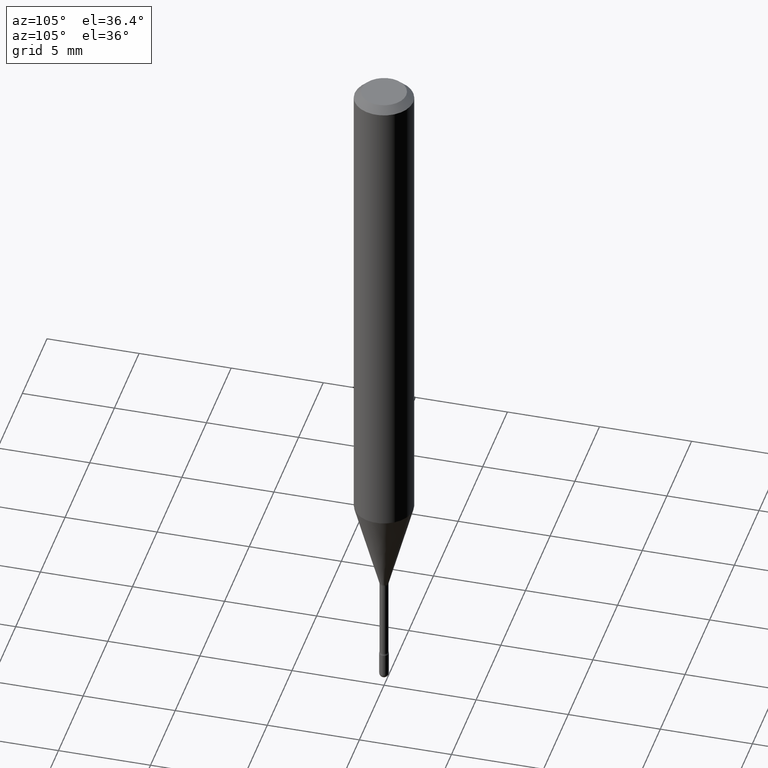
[diagram: clean part render]
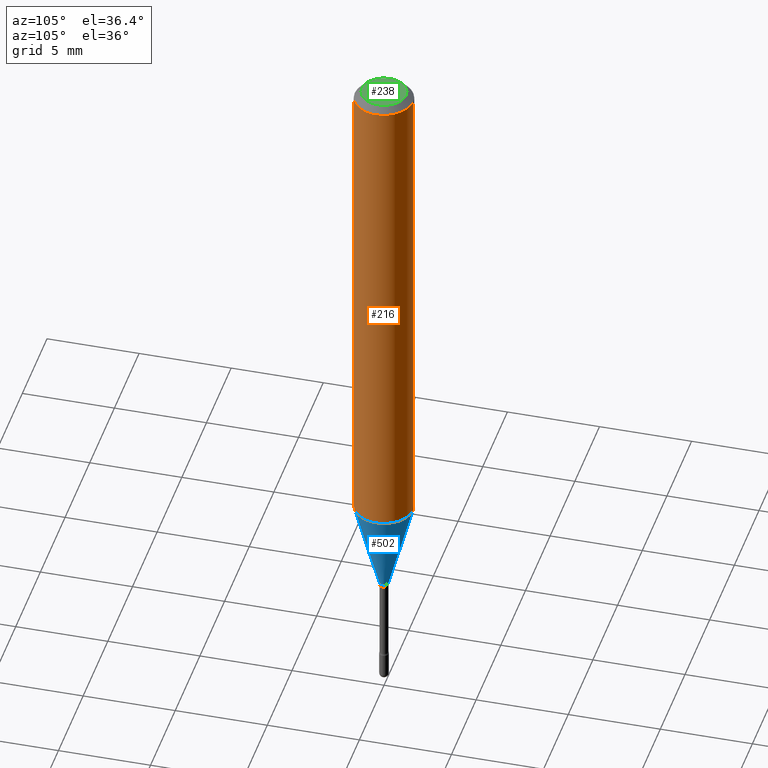
[diagram: same view with three faces highlighted in distinct colors, each labeled with its STEP entity id]
A machine part, auxiliary view with three faces highlighted in distinct colors.
Their STEP definitions:

[orange] entity #216 — the highlighted cylindrical surface (edge-blend (fillet) strip) has radius 1.5875 mm, axis along (-0, 0, 1).
#29 = CARTESIAN_POINT ( 'NONE',  ( 4.440892098500884514E-16, 0.06249999999999629463, -1.061828102118093309 ) ) ;
#33 = DIRECTION ( 'NONE',  ( -2.445584668416512625E-29, 3.491315417533346075E-15, 1.000000000000000000 ) ) ;
#84 = VERTEX_POINT ( 'NONE', #202 ) ;
#91 = VECTOR ( 'NONE', #159, 39.37007874015748143 ) ;
#94 = DIRECTION ( 'NONE',  ( -6.982962677686265922E-15, -1.000000000000000000, 3.491315417533345680E-15 ) ) ;
#123 = LINE ( 'NONE', #375, #452 ) ;
#132 = EDGE_CURVE ( 'NONE', #84, #310, #140, .T. ) ;
#140 = LINE ( 'NONE', #338, #91 ) ;
#146 = VERTEX_POINT ( 'NONE', #29 ) ;
#159 = DIRECTION ( 'NONE',  ( -2.445584668416512625E-29, 3.491315417533346075E-15, 1.000000000000000000 ) ) ;
#178 = CYLINDRICAL_SURFACE ( 'NONE', #346, 0.06250000000000000000 ) ;
#184 = EDGE_LOOP ( 'NONE', ( #263, #425, #436, #513 ) ) ;
#190 = CARTESIAN_POINT ( 'NONE',  ( 3.668377002624788976E-31, -5.236973126300048325E-17, -0.01500000000000008271 ) ) ;
#202 = CARTESIAN_POINT ( 'NONE',  ( -4.364351673553657356E-16, -0.06250000000000371925, -1.061828102118092865 ) ) ;
#216 = ADVANCED_FACE ( 'NONE', ( #531 ), #178, .T. ) ;
#257 = CIRCLE ( 'NONE', #340, 0.06250000000000000000 ) ;
#263 = ORIENTED_EDGE ( 'NONE', *, *, #453, .T. ) ;
#281 = DIRECTION ( 'NONE',  ( -6.982962677686265922E-15, -1.000000000000000000, 3.483106191921935554E-15 ) ) ;
#310 = VERTEX_POINT ( 'NONE', #353 ) ;
#313 = CARTESIAN_POINT ( 'NONE',  ( 4.440892098500887472E-16, 0.06249999999999995837, -0.01500000000000030129 ) ) ;
#338 = CARTESIAN_POINT ( 'NONE',  ( -4.364351673553916201E-16, -0.06250000000000000000, 6.962806124870801683E-16 ) ) ;
#340 = AXIS2_PLACEMENT_3D ( 'NONE', #407, #540, #399 ) ;
#346 = AXIS2_PLACEMENT_3D ( 'NONE', #445, #351, #94 ) ;
#351 = DIRECTION ( 'NONE',  ( -2.445584668416512625E-29, 3.491315417533346075E-15, 1.000000000000000000 ) ) ;
#353 = CARTESIAN_POINT ( 'NONE',  ( -4.364351673553912750E-16, -0.06250000000000005551, -0.01499999999999986587 ) ) ;
#374 = AXIS2_PLACEMENT_3D ( 'NONE', #190, #441, #281 ) ;
#375 = CARTESIAN_POINT ( 'NONE',  ( 4.440892098500625669E-16, 0.06250000000000000000, 2.598661852954119582E-16 ) ) ;
#382 = CIRCLE ( 'NONE', #374, 0.06250000000000000000 ) ;
#399 = DIRECTION ( 'NONE',  ( -6.982962677686265922E-15, -1.000000000000000000, 4.370956789862821150E-15 ) ) ;
#406 = EDGE_CURVE ( 'NONE', #310, #418, #382, .T. ) ;
#407 = CARTESIAN_POINT ( 'NONE',  ( 2.596790527033811359E-29, -3.707176823695070434E-15, -1.061828102118093087 ) ) ;
#418 = VERTEX_POINT ( 'NONE', #313 ) ;
#425 = ORIENTED_EDGE ( 'NONE', *, *, #519, .T. ) ;
#436 = ORIENTED_EDGE ( 'NONE', *, *, #406, .F. ) ;
#441 = DIRECTION ( 'NONE',  ( -2.445584668416512625E-29, 3.491315417533346075E-15, 1.000000000000000000 ) ) ;
#445 = CARTESIAN_POINT ( 'NONE',  ( -1.169113584055446105E-44, 1.669184350826100908E-30, 4.780733988912460139E-16 ) ) ;
#452 = VECTOR ( 'NONE', #33, 39.37007874015748143 ) ;
#453 = EDGE_CURVE ( 'NONE', #84, #146, #257, .T. ) ;
#513 = ORIENTED_EDGE ( 'NONE', *, *, #132, .F. ) ;
#519 = EDGE_CURVE ( 'NONE', #146, #418, #123, .T. ) ;
#531 = FACE_OUTER_BOUND ( 'NONE', #184, .T. ) ;
#540 = DIRECTION ( 'NONE',  ( -2.445584668416512625E-29, 3.491315417533346075E-15, 1.000000000000000000 ) ) ;

[blue] entity #502 — the highlighted conical surface has half-angle 15 deg.
#21 = EDGE_CURVE ( 'NONE', #548, #84, #392, .T. ) ;
#29 = CARTESIAN_POINT ( 'NONE',  ( 4.440892098500884514E-16, 0.06249999999999629463, -1.061828102118093309 ) ) ;
#31 = CARTESIAN_POINT ( 'NONE',  ( 3.076771733820729551E-29, -4.392397748173006577E-15, -1.258092501787273276 ) ) ;
#46 = CIRCLE ( 'NONE', #256, 0.009911112605663983943 ) ;
#49 = CARTESIAN_POINT ( 'NONE',  ( -6.920892941966669973E-17, -0.009911112605668376263, -1.258092501787273276 ) ) ;
#67 = DIRECTION ( 'NONE',  ( -6.982962677686264344E-15, -1.000000000000000000, 0.000000000000000000 ) ) ;
#84 = VERTEX_POINT ( 'NONE', #202 ) ;
#117 = ORIENTED_EDGE ( 'NONE', *, *, #396, .T. ) ;
#120 = CARTESIAN_POINT ( 'NONE',  ( -6.920892941966669973E-17, -0.009911112605668376263, -1.258092501787273276 ) ) ;
#127 = VECTOR ( 'NONE', #273, 39.37007874015748143 ) ;
#139 = VERTEX_POINT ( 'NONE', #333 ) ;
#143 = AXIS2_PLACEMENT_3D ( 'NONE', #31, #542, #201 ) ;
#146 = VERTEX_POINT ( 'NONE', #29 ) ;
#147 = VECTOR ( 'NONE', #315, 39.37007874015748854 ) ;
#163 = ORIENTED_EDGE ( 'NONE', *, *, #453, .F. ) ;
#173 = EDGE_CURVE ( 'NONE', #548, #139, #46, .T. ) ;
#187 = LINE ( 'NONE', #237, #127 ) ;
#201 = DIRECTION ( 'NONE',  ( -6.982962677686264344E-15, -1.000000000000000000, 0.000000000000000000 ) ) ;
#202 = CARTESIAN_POINT ( 'NONE',  ( -4.364351673553657356E-16, -0.06250000000000371925, -1.061828102118092865 ) ) ;
#227 = DIRECTION ( 'NONE',  ( -2.445584668416512625E-29, 3.491315417533346075E-15, 1.000000000000000000 ) ) ;
#237 = CARTESIAN_POINT ( 'NONE',  ( 7.042269065257977501E-17, 0.009911112605659591623, -1.258092501787273276 ) ) ;
#256 = AXIS2_PLACEMENT_3D ( 'NONE', #398, #227, #67 ) ;
#257 = CIRCLE ( 'NONE', #340, 0.06250000000000000000 ) ;
#273 = DIRECTION ( 'NONE',  ( 1.839019923739596371E-15, 0.2588190451025244032, 0.9659258262890673130 ) ) ;
#315 = DIRECTION ( 'NONE',  ( -1.807323732225326195E-15, -0.2588190451025176309, 0.9659258262890690894 ) ) ;
#329 = CONICAL_SURFACE ( 'NONE', #143, 0.009911112605663983943, 0.2617993877991496854 ) ;
#333 = CARTESIAN_POINT ( 'NONE',  ( 2.572559502513342919E-16, 0.009911112605659591623, -1.258092501787273276 ) ) ;
#340 = AXIS2_PLACEMENT_3D ( 'NONE', #407, #540, #399 ) ;
#392 = LINE ( 'NONE', #49, #147 ) ;
#396 = EDGE_CURVE ( 'NONE', #139, #146, #187, .T. ) ;
#398 = CARTESIAN_POINT ( 'NONE',  ( 3.076771733820729551E-29, -4.392397748173006577E-15, -1.258092501787273276 ) ) ;
#399 = DIRECTION ( 'NONE',  ( -6.982962677686265922E-15, -1.000000000000000000, 4.370956789862821150E-15 ) ) ;
#400 = ORIENTED_EDGE ( 'NONE', *, *, #173, .T. ) ;
#407 = CARTESIAN_POINT ( 'NONE',  ( 2.596790527033811359E-29, -3.707176823695070434E-15, -1.061828102118093087 ) ) ;
#446 = FACE_OUTER_BOUND ( 'NONE', #522, .T. ) ;
#453 = EDGE_CURVE ( 'NONE', #84, #146, #257, .T. ) ;
#486 = ORIENTED_EDGE ( 'NONE', *, *, #21, .F. ) ;
#502 = ADVANCED_FACE ( 'NONE', ( #446 ), #329, .T. ) ;
#522 = EDGE_LOOP ( 'NONE', ( #400, #117, #163, #486 ) ) ;
#540 = DIRECTION ( 'NONE',  ( -2.445584668416512625E-29, 3.491315417533346075E-15, 1.000000000000000000 ) ) ;
#542 = DIRECTION ( 'NONE',  ( -2.445584668416512625E-29, 3.491315417533346075E-15, 1.000000000000000000 ) ) ;
#548 = VERTEX_POINT ( 'NONE', #120 ) ;

[green] entity #238 — the highlighted planar face has unit normal (0, -0, -1).
#2 = DIRECTION ( 'NONE',  ( -2.445584668416512625E-29, 3.491315417533346075E-15, 1.000000000000000000 ) ) ;
#47 = ORIENTED_EDGE ( 'NONE', *, *, #111, .T. ) ;
#57 = VERTEX_POINT ( 'NONE', #565 ) ;
#58 = CARTESIAN_POINT ( 'NONE',  ( 3.316907271900976096E-16, 0.04749999999999999362, 3.182176044590865789E-17 ) ) ;
#111 = EDGE_CURVE ( 'NONE', #421, #57, #373, .T. ) ;
#125 = CARTESIAN_POINT ( 'NONE',  ( 2.024395379359398179E-45, -2.888441822342708038E-31, -8.275491333376081363E-17 ) ) ;
#181 = AXIS2_PLACEMENT_3D ( 'NONE', #496, #292, #248 ) ;
#238 = ADVANCED_FACE ( 'NONE', ( #483 ), #391, .F. ) ;
#244 = AXIS2_PLACEMENT_3D ( 'NONE', #125, #2, #558 ) ;
#248 = DIRECTION ( 'NONE',  ( -6.982962677686266711E-15, -1.000000000000000000, 3.491315417533346075E-15 ) ) ;
#255 = ORIENTED_EDGE ( 'NONE', *, *, #326, .T. ) ;
#269 = DIRECTION ( 'NONE',  ( 6.982962677686265922E-15, 1.000000000000000000, -3.491315417533346075E-15 ) ) ;
#292 = DIRECTION ( 'NONE',  ( -2.445584668416512625E-29, 3.491315417533346075E-15, 1.000000000000000000 ) ) ;
#322 = AXIS2_PLACEMENT_3D ( 'NONE', #58, #524, #269 ) ;
#326 = EDGE_CURVE ( 'NONE', #57, #421, #500, .T. ) ;
#355 = CARTESIAN_POINT ( 'NONE',  ( 3.840629472727447874E-16, 0.04749999999999999362, -2.485923956665947374E-16 ) ) ;
#373 = CIRCLE ( 'NONE', #181, 0.04749999999999999362 ) ;
#391 = PLANE ( 'NONE',  #322 ) ;
#421 = VERTEX_POINT ( 'NONE', #355 ) ;
#435 = EDGE_LOOP ( 'NONE', ( #47, #255 ) ) ;
#483 = FACE_OUTER_BOUND ( 'NONE', #435, .T. ) ;
#496 = CARTESIAN_POINT ( 'NONE',  ( 2.024395379359398179E-45, -2.888441822342708038E-31, -8.275491333376081363E-17 ) ) ;
#500 = CIRCLE ( 'NONE', #244, 0.04749999999999999362 ) ;
#524 = DIRECTION ( 'NONE',  ( 2.445584668416512625E-29, -3.491315417533346075E-15, -1.000000000000000000 ) ) ;
#558 = DIRECTION ( 'NONE',  ( -6.982962677686266711E-15, -1.000000000000000000, 3.491315417533346075E-15 ) ) ;
#565 = CARTESIAN_POINT ( 'NONE',  ( -3.773273898774340269E-16, -0.04749999999999999362, 8.308256899907312246E-17 ) ) ;